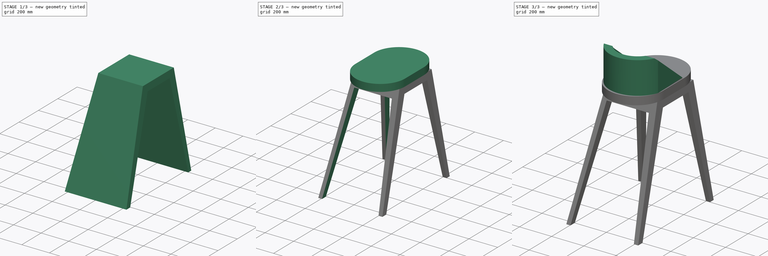
[diagram: build sequence overview — one tinted view per stage of 3, left to right]
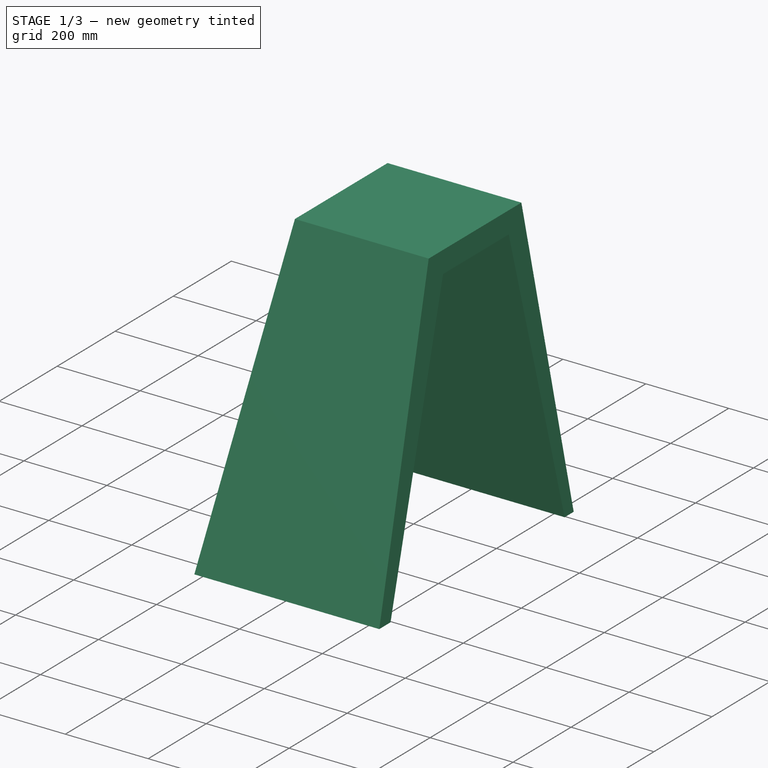
[diagram: stage 1 of 3 — iso view after this stage's code; geometry added in this stage tinted green]
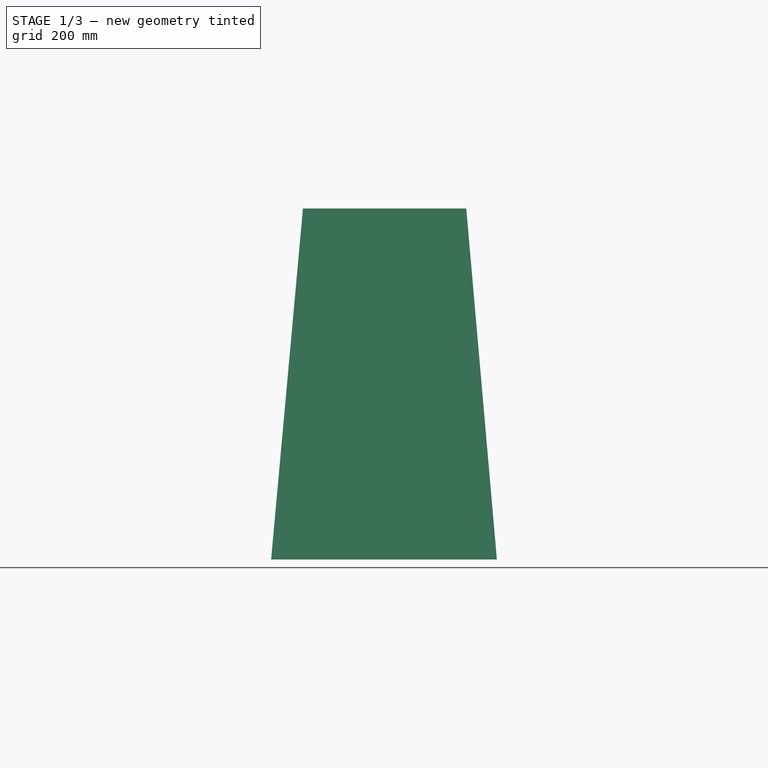
[diagram: stage 1 of 3 — front view after this stage's code; geometry added in this stage tinted green]
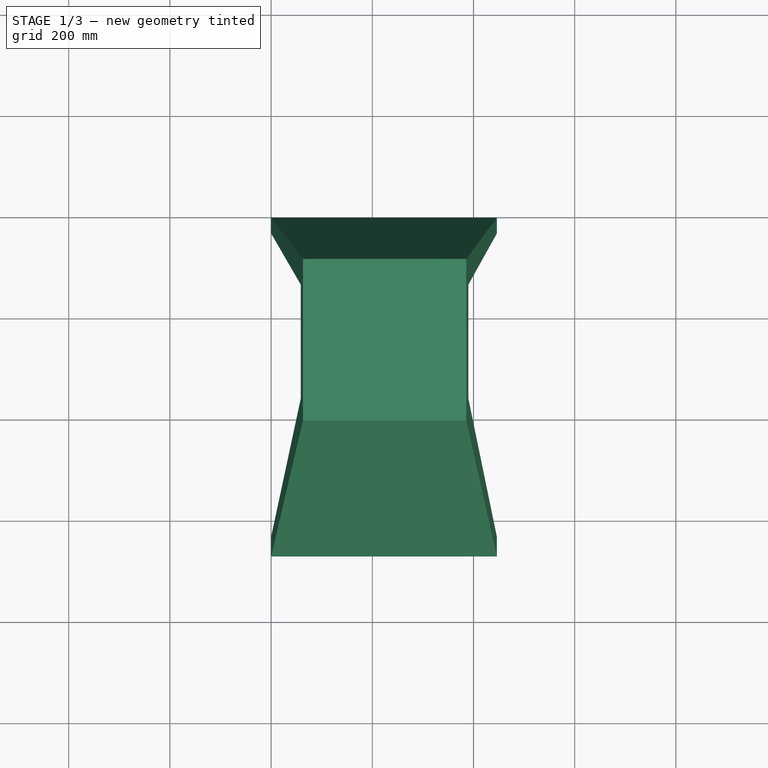
[diagram: stage 1 of 3 — top view after this stage's code; geometry added in this stage tinted green]
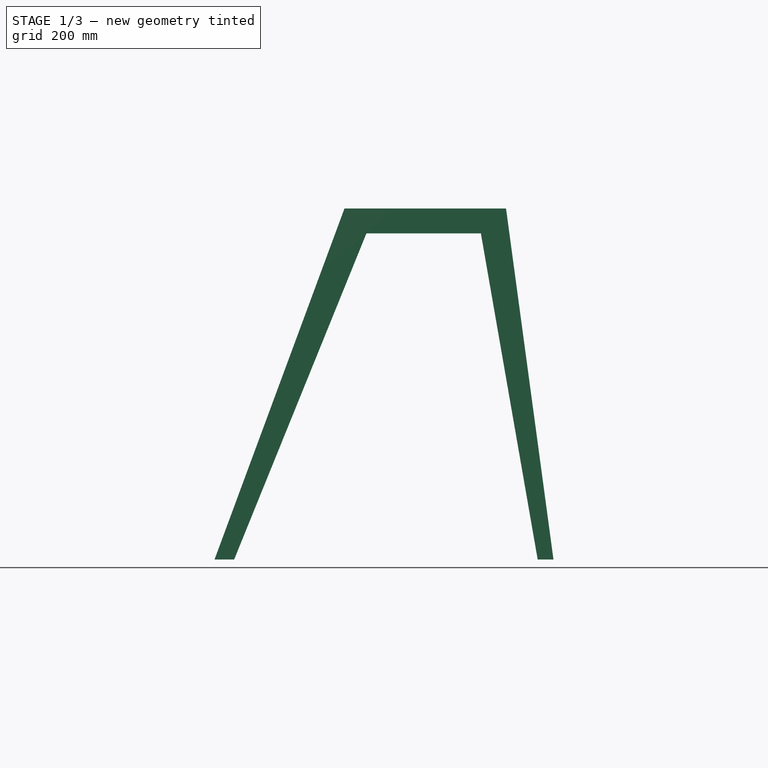
[diagram: stage 1 of 3 — right view after this stage's code; geometry added in this stage tinted green]
FCSTD DOCUMENT  (FreeCAD 1.0R39319 (Git))
Label: bar-stool
License: All rights reserved
LicenseURL: https://en.wikipedia.org/wiki/All_rights_reserved
objects: Sketcher::SketchObject×7, PartDesign::Pad×3, PartDesign::Pocket×3, PartDesign::Body×1
note: 33 computed .brp shape members not serialized (recipe doc carries the construction recipe); baked Part::Feature solids carry a one-line shape summary decoded from their .brp

FEATURE [Sketcher::SketchObject] Sketch
  ArcFitTolerance = 1e-06
  AttachmentSupport = -> [YZ_Plane]
  FullyConstrained = false
  MakeInternals = false
  MapMode = 5
  Placement = pos=(0,0,0) rot=(0.57735,0.57735,0.57735;2.0944rad)
  sketch-geometry (8):
    g0: LineSegment StartX=0 StartY=0 StartZ=0 EndX=-93.7558 EndY=693.693 EndZ=0
    g1: LineSegment StartX=-93.7558 StartY=693.693 StartZ=0 EndX=-413.044 EndY=693.693 EndZ=0
    g2: LineSegment StartX=-413.044 StartY=693.693 StartZ=0 EndX=-669.832 EndY=-3.42e-14 EndZ=0
    g3: LineSegment StartX=-669.832 StartY=-1.6e-14 StartZ=0 EndX=-631.064 EndY=0 EndZ=0
    g4: LineSegment StartX=-631.064 StartY=0 StartZ=0 EndX=-369.642 EndY=644.528 EndZ=0
    g5: LineSegment StartX=-369.642 StartY=644.528 StartZ=0 EndX=-143.466 EndY=644.528 EndZ=0
    g6: LineSegment StartX=-143.466 StartY=644.528 StartZ=0 EndX=-31.2047 EndY=4.9e-15 EndZ=0
    g7: LineSegment StartX=-31.2047 StartY=4.9e-15 StartZ=0 EndX=0 EndY=0 EndZ=0
  constraints (15):
    c: Distance(g0) = 700
    c: Coincident(g0,g-1)
    c: Coincident(g1,g0)
    c: Horizontal(g1)
    c: Coincident(g2,g1)
    c: PointOnObject(g2,g-1)
    c: Coincident(g3,g2)
    c: PointOnObject(g3,g-1)
    c: Coincident(g4,g3)
    c: Coincident(g5,g4)
    c: Horizontal(g5)
    c: Coincident(g6,g5)
    c: PointOnObject(g6,g-1)
    c: Coincident(g7,g6)
    c: Coincident(g7,g0)
FEATURE [PartDesign::Pad] Pad
  Direction = (1,0,0)
  Length = 450
  Length2 = 10
  Placement = pos=(0,0,0) rot=(1,1,1;2.0944rad)
  Profile = -> Sketch
  ReferenceAxis = -> Sketch [N_Axis]
  Refine = true
  Suppressed = false
  Type = 0
FEATURE [Sketcher::SketchObject] Sketch001
  ArcFitTolerance = 1e-06
  AttachmentSupport = -> [XZ_Plane]
  FullyConstrained = false
  MakeInternals = false
  MapMode = 5
  Placement = pos=(0,0,0) rot=(1,0,0;1.5708rad)
  sketch-geometry (8):
    g0: LineSegment StartX=0 StartY=0 StartZ=0 EndX=68.6539 EndY=756.659 EndZ=0
    g1: LineSegment StartX=68.6539 StartY=756.659 StartZ=0 EndX=-58.0107 EndY=756.659 EndZ=0
    g2: LineSegment StartX=-58.0107 StartY=756.659 StartZ=0 EndX=-58.0107 EndY=0 EndZ=0
    g3: LineSegment StartX=-58.0107 StartY=0 StartZ=0 EndX=0 EndY=0 EndZ=0
    g4: LineSegment StartX=446.247 StartY=0 StartZ=0 EndX=380.038 EndY=758.558 EndZ=0
    g5: LineSegment StartX=380.038 StartY=758.558 StartZ=0 EndX=486.735 EndY=758.558 EndZ=0
    g6: LineSegment StartX=486.735 StartY=758.558 StartZ=0 EndX=486.735 EndY=0 EndZ=0
    g7: LineSegment StartX=446.247 StartY=0 StartZ=0 EndX=486.735 EndY=0 EndZ=0
  constraints (16):
    c: Coincident(g0,g-1)
    c: Coincident(g1,g0)
    c: Horizontal(g1)
    c: Coincident(g2,g1)
    c: PointOnObject(g2,g-1)
    c: Vertical(g2)
    c: Coincident(g3,g2)
    c: Coincident(g3,g0)
    c: PointOnObject(g4,g-1)
    c: Coincident(g5,g4)
    c: Horizontal(g5)
    c: Coincident(g6,g5)
    c: PointOnObject(g6,g-1)
    c: Vertical(g6)
    c: Coincident(g7,g4)
    c: Coincident(g7,g6)
FEATURE [PartDesign::Pocket] Pocket
  BaseFeature = -> Pad
  Direction = (0,1,-2e-16)
  Length = 5
  Length2 = 5
  Placement = pos=(0,0,0) rot=(1,1,1;2.0944rad)
  Profile = -> Sketch001
  ReferenceAxis = -> Sketch001 [N_Axis]
  Refine = true
  Reversed = true
  Suppressed = false
  Type = 1
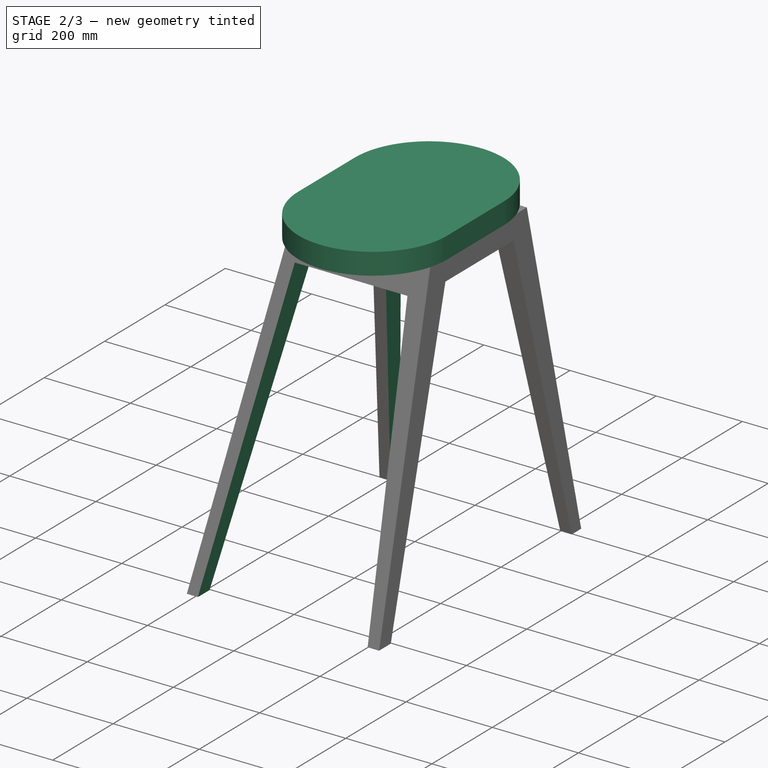
[diagram: stage 2 of 3 — iso view after this stage's code; geometry added in this stage tinted green]
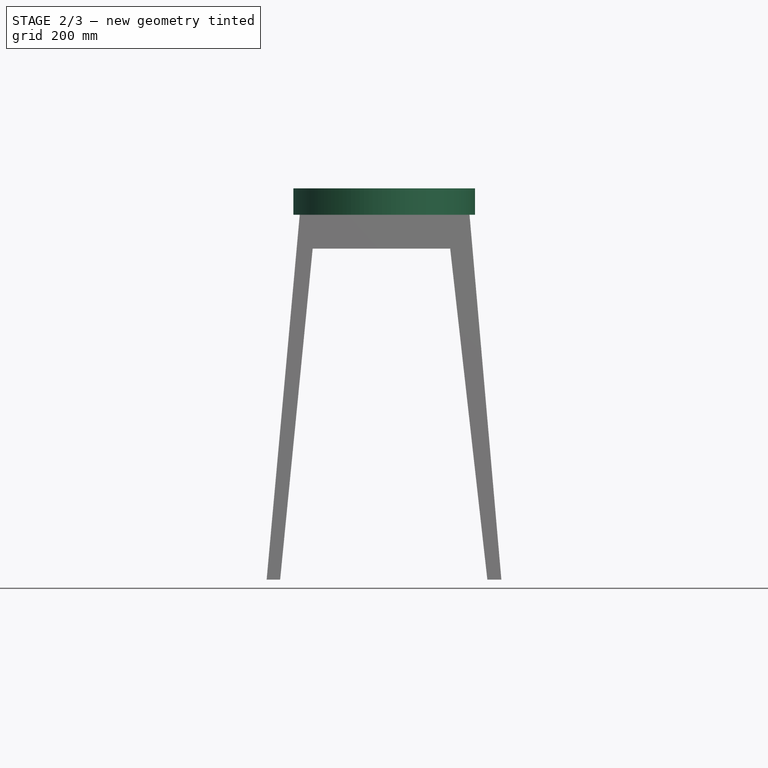
[diagram: stage 2 of 3 — front view after this stage's code; geometry added in this stage tinted green]
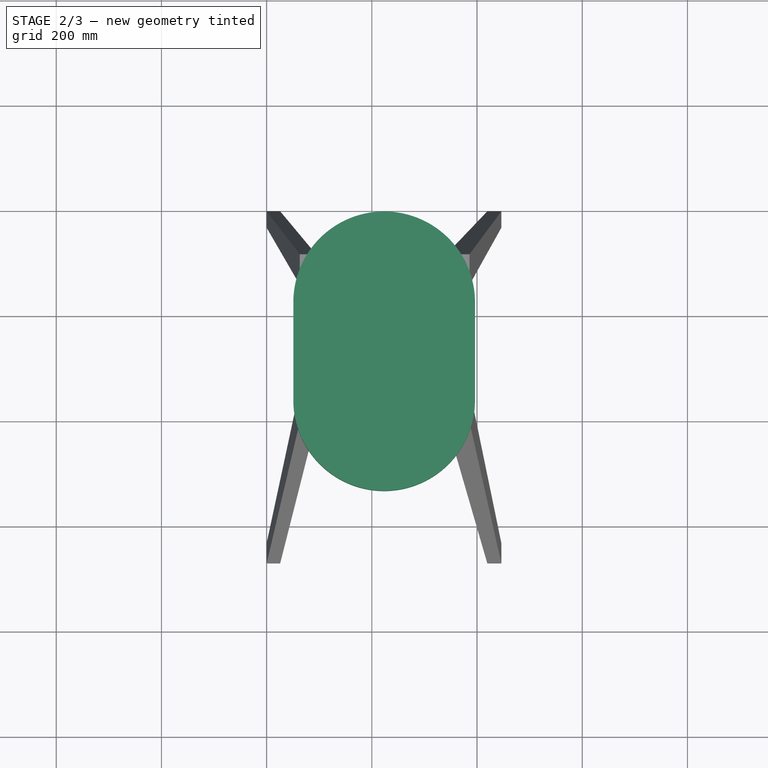
[diagram: stage 2 of 3 — top view after this stage's code; geometry added in this stage tinted green]
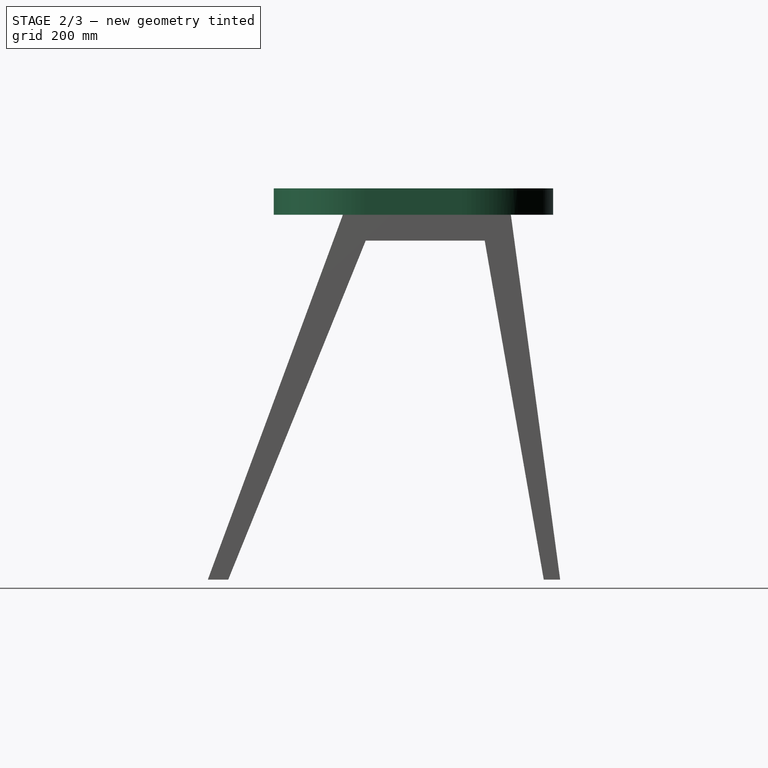
[diagram: stage 2 of 3 — right view after this stage's code; geometry added in this stage tinted green]
FEATURE [Sketcher::SketchObject] Sketch002
  ArcFitTolerance = 1e-06
  AttachmentSupport = -> [XZ_Plane]
  FullyConstrained = false
  MakeInternals = false
  MapMode = 5
  Placement = pos=(0,0,0) rot=(1,0,0;1.5708rad)
  sketch-geometry (4):
    g0: LineSegment StartX=15.7413 StartY=-101.116 StartZ=0 EndX=87.5041 EndY=629.326 EndZ=0
    g1: LineSegment StartX=87.5041 StartY=629.326 StartZ=0 EndX=348.926 EndY=629.326 EndZ=0
    g2: LineSegment StartX=348.926 StartY=629.326 StartZ=0 EndX=430.94 EndY=-101.116 EndZ=0
    g3: LineSegment StartX=430.94 StartY=-101.116 StartZ=0 EndX=15.7413 EndY=-101.116 EndZ=0
  constraints (6):
    c: Coincident(g1,g0)
    c: Horizontal(g1)
    c: Coincident(g2,g1)
    c: Coincident(g3,g2)
    c: Coincident(g3,g0)
    c: Horizontal(g3)
FEATURE [PartDesign::Pocket] Pocket001
  BaseFeature = -> Pocket
  Direction = (0,1,-2e-16)
  Length = 5
  Length2 = 5
  Placement = pos=(0,0,0) rot=(1,1,1;2.0944rad)
  Profile = -> Sketch002
  ReferenceAxis = -> Sketch002 [N_Axis]
  Refine = true
  Reversed = true
  Suppressed = false
  Type = 1
FEATURE [Sketcher::SketchObject] Sketch003
  ArcFitTolerance = 1e-06
  AttachmentSupport = -> [Pocket001]
  FullyConstrained = false
  MakeInternals = false
  MapMode = 5
  Placement = pos=(-5.391e-13,3.851e-13,693.693) rot=(0,0,-1;1.5708rad)
  sketch-geometry (4):
    g0: ArcOfCircle CenterX=186.041 CenterY=223.436 CenterZ=0 NormalX=0 NormalY=0 NormalZ=1 AngleXU=0 Radius=172.692 StartAngle=1.5708 EndAngle=4.71239
    g1: ArcOfCircle CenterX=371.771 CenterY=223.436 CenterZ=0 NormalX=0 NormalY=0 NormalZ=1 AngleXU=0 Radius=172.692 StartAngle=4.71239 EndAngle=7.85398
    g2: LineSegment StartX=186.041 StartY=396.128 StartZ=0 EndX=371.771 EndY=396.128 EndZ=0
    g3: LineSegment StartX=186.041 StartY=50.7442 StartZ=0 EndX=371.771 EndY=50.7442 EndZ=0
  constraints (6):
    c: Tangent(g0,g2) = 1.5708
    c: Tangent(g0,g3) = -1.5708
    c: Tangent(g1,g2) = 1.5708
    c: Tangent(g1,g3) = -1.5708
    c: Equal(g0,g1)
    c: Horizontal(g3)
FEATURE [PartDesign::Pad] Pad001
  BaseFeature = -> Pocket001
  Direction = (0,0,1)
  Length = 50
  Length2 = 10
  Placement = pos=(0,0,0) rot=(1,1,1;2.0944rad)
  Profile = -> Sketch003
  ReferenceAxis = -> Sketch003 [N_Axis]
  Refine = true
  Suppressed = false
  Type = 0
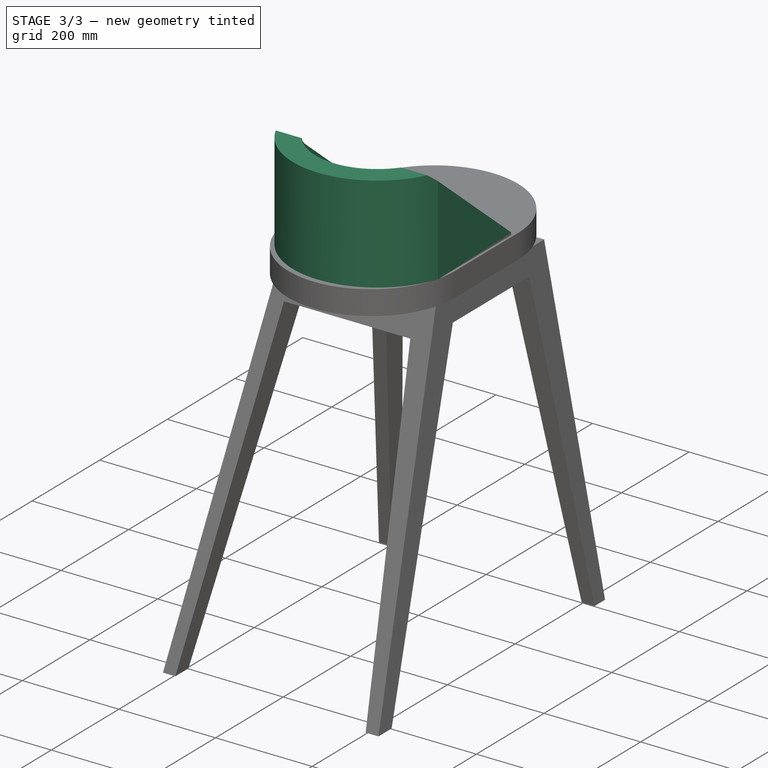
[diagram: stage 3 of 3 — iso view after this stage's code; geometry added in this stage tinted green]
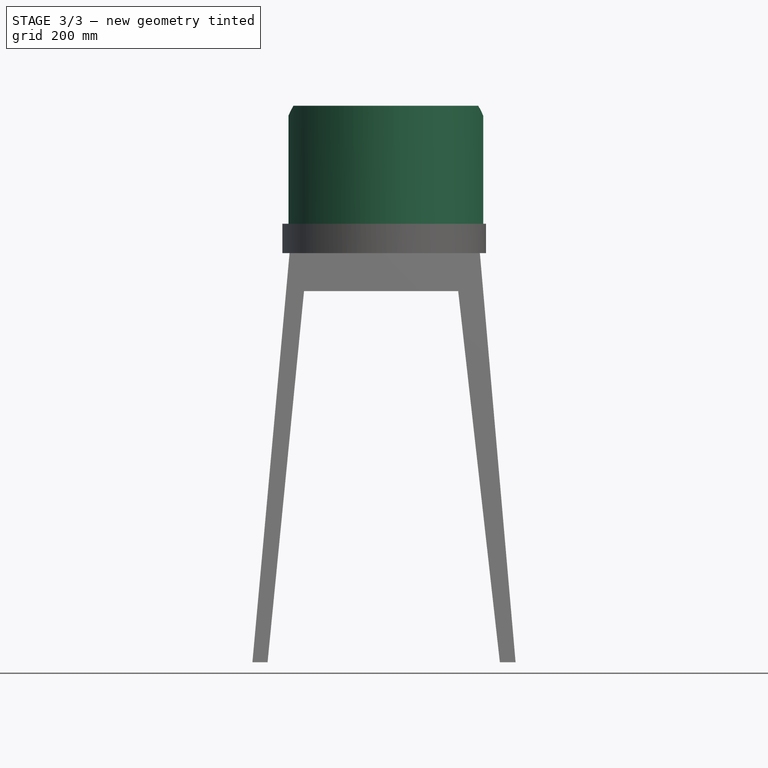
[diagram: stage 3 of 3 — front view after this stage's code; geometry added in this stage tinted green]
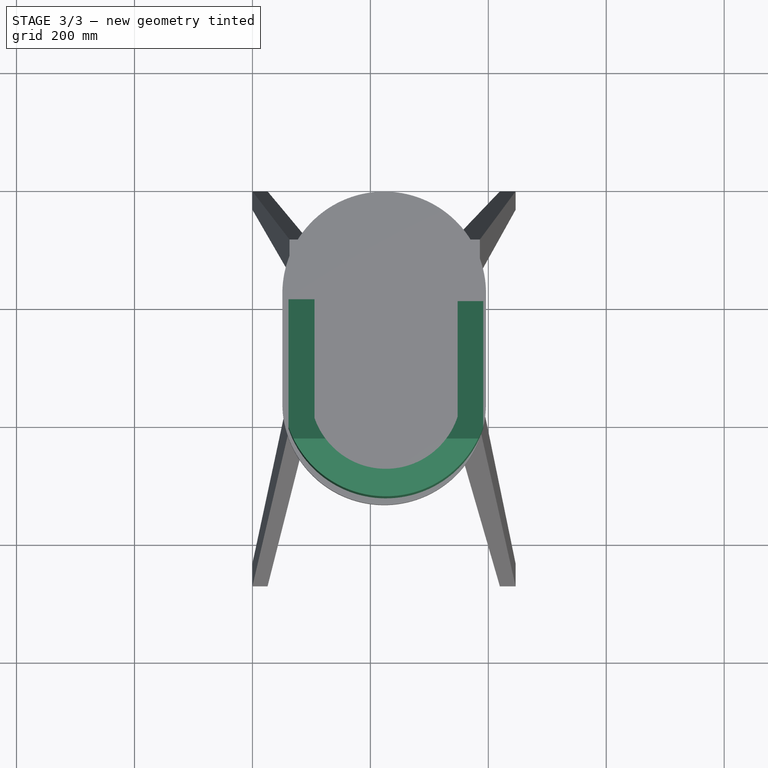
[diagram: stage 3 of 3 — top view after this stage's code; geometry added in this stage tinted green]
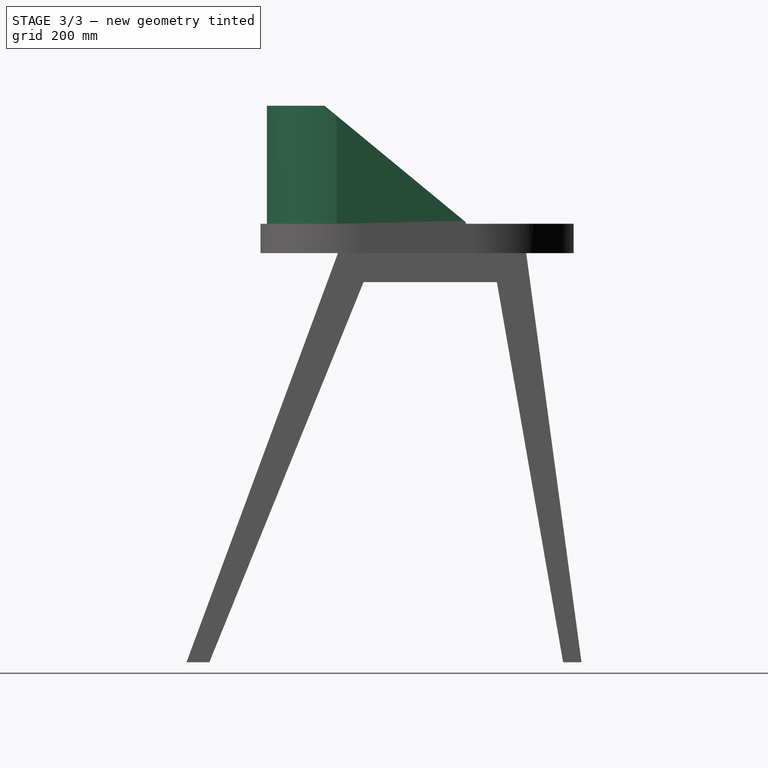
[diagram: stage 3 of 3 — right view after this stage's code; geometry added in this stage tinted green]
FEATURE [Sketcher::SketchObject] Sketch004
  ArcFitTolerance = 1e-06
  AttachmentSupport = -> [Pad001]
  FullyConstrained = false
  MakeInternals = false
  MapMode = 5
  Placement = pos=(-2.477e-13,8.26e-14,743.693) rot=(0,0,-1;1.5708rad)
  sketch-geometry (8):
    g0: ArcOfCircle CenterX=359.255 CenterY=226.236 CenterZ=0 NormalX=0 NormalY=0 NormalZ=1 AngleXU=0 Radius=174.337 StartAngle=5.03949 EndAngle=7.52689
    g1: ArcOfCircle CenterX=359.255 CenterY=226.236 CenterZ=0 NormalX=0 NormalY=0 NormalZ=1 AngleXU=0 Radius=127.725 StartAngle=5.04144 EndAngle=7.54722
    g2: LineSegment StartX=415.268 StartY=391.33 StartZ=0 EndX=199.106 EndY=391.33 EndZ=0
    g3: LineSegment StartX=199.106 StartY=391.33 StartZ=0 EndX=199.106 EndY=347.998 EndZ=0
    g4: LineSegment StartX=199.106 StartY=347.998 StartZ=0 EndX=397.825 EndY=347.998 EndZ=0
    g5: LineSegment StartX=400.528 StartY=105.364 StartZ=0 EndX=196.068 EndY=105.364 EndZ=0
    g6: LineSegment StartX=196.068 StartY=105.364 StartZ=0 EndX=196.068 EndY=61.1422 EndZ=0
    g7: LineSegment StartX=196.068 StartY=61.1422 StartZ=0 EndX=415.269 EndY=61.1422 EndZ=0
  constraints (15):
    c: Coincident(g1,g0)
    c: Coincident(g2,g0)
    c: Horizontal(g2)
    c: Coincident(g3,g2)
    c: Vertical(g3)
    c: Coincident(g4,g3)
    c: Coincident(g4,g1)
    c: Horizontal(g4)
    c: Coincident(g5,g1)
    c: Horizontal(g5)
    c: Coincident(g6,g5)
    c: Vertical(g6)
    c: Coincident(g7,g6)
    c: Coincident(g7,g0)
    c: Horizontal(g7)
FEATURE [PartDesign::Pad] Pad002
  BaseFeature = -> Pad001
  Direction = (0,0,1)
  Length = 200
  Length2 = 10
  Placement = pos=(0,0,0) rot=(1,1,1;2.0944rad)
  Profile = -> Sketch004
  ReferenceAxis = -> Sketch004 [N_Axis]
  Refine = true
  Suppressed = false
  Type = 0
FEATURE [Sketcher::SketchObject] Sketch005
  ArcFitTolerance = 1e-06
  AttachmentSupport = -> [XY_Plane]
  FullyConstrained = true
  MakeInternals = false
  MapMode = 5
FEATURE [Sketcher::SketchObject] Sketch006
  ArcFitTolerance = 1e-06
  AttachmentSupport = -> [YZ_Plane]
  FullyConstrained = false
  MakeInternals = false
  MapMode = 5
  Placement = pos=(0,0,0) rot=(0.57735,0.57735,0.57735;2.0944rad)
  sketch-geometry (4):
    g0: LineSegment StartX=-193.694 StartY=744.099 StartZ=0 EndX=-545.721 EndY=1034.45 EndZ=0
    g1: LineSegment StartX=-545.721 StartY=1034.45 StartZ=0 EndX=-176.156 EndY=1034.45 EndZ=0
    g2: LineSegment StartX=-176.156 StartY=1034.45 StartZ=0 EndX=-176.156 EndY=744.099 EndZ=0
    g3: LineSegment StartX=-176.156 StartY=744.099 StartZ=0 EndX=-193.694 EndY=744.099 EndZ=0
  constraints (7):
    c: Coincident(g1,g0)
    c: Horizontal(g1)
    c: Coincident(g2,g1)
    c: Vertical(g2)
    c: Coincident(g3,g2)
    c: Coincident(g3,g0)
    c: Horizontal(g3)
FEATURE [PartDesign::Pocket] Pocket002
  BaseFeature = -> Pad002
  Direction = (-1,0,0)
  Length = 5
  Length2 = 5
  Placement = pos=(0,0,0) rot=(1,1,1;2.0944rad)
  Profile = -> Sketch006
  ReferenceAxis = -> Sketch006 [N_Axis]
  Refine = true
  Reversed = true
  Suppressed = false
  Type = 1
FEATURE [PartDesign::Body] Body
  AllowCompound = false
  Group = -> [Sketch,Pad,Sketch001,Pocket,Sketch002,Pocket001,Sketch003,Pad001,Sketch004,Pad002,Sketch005,Sketch006,Pocket002]
  Origin = -> Origin
  Tip = -> Pocket002
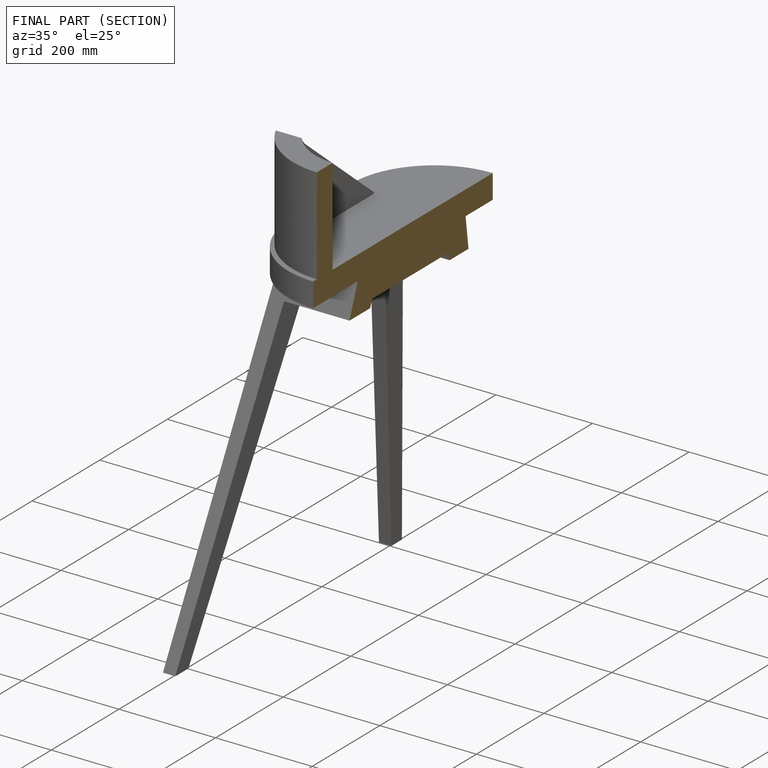
[diagram: finished part — half-section view (interior)]
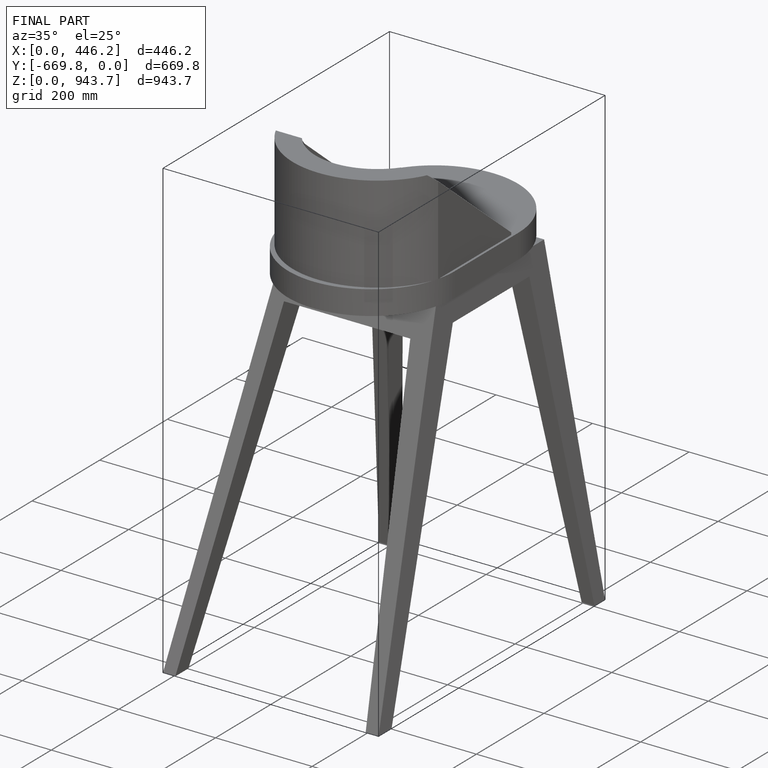
[diagram: finished part — iso view with bounding-box wireframe]
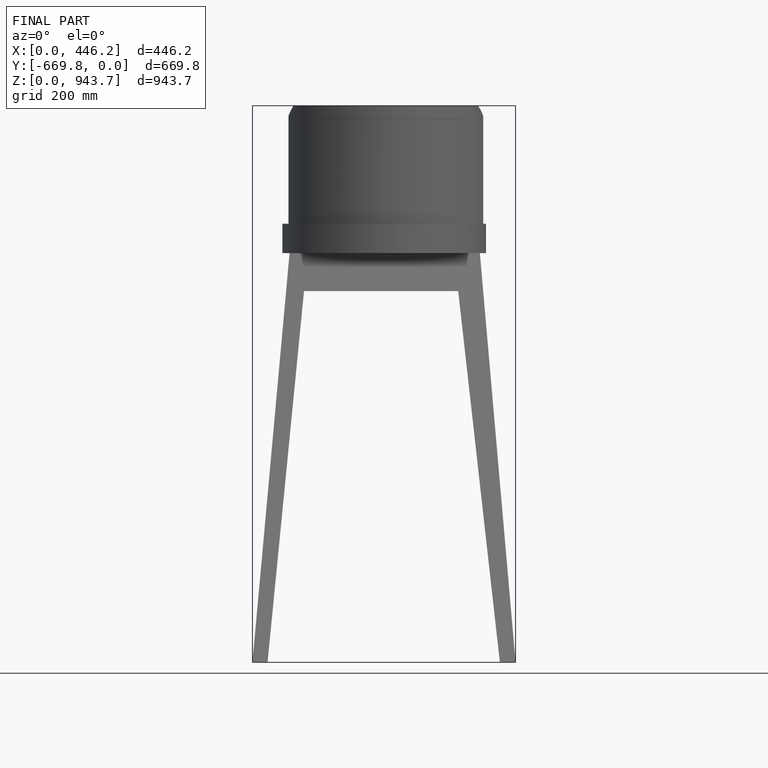
[diagram: finished part — front view with bounding-box wireframe]
